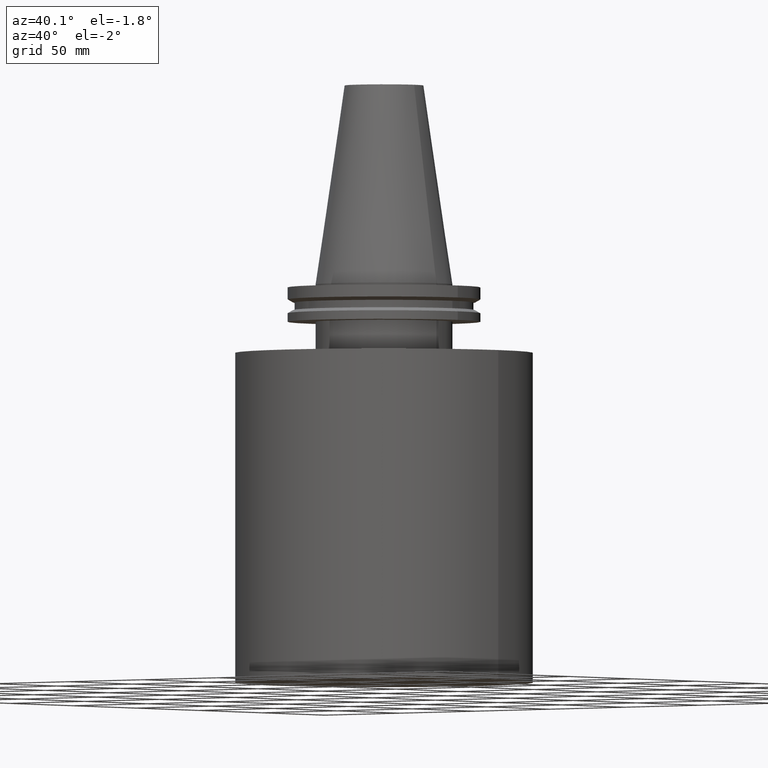
[diagram: clean part render]
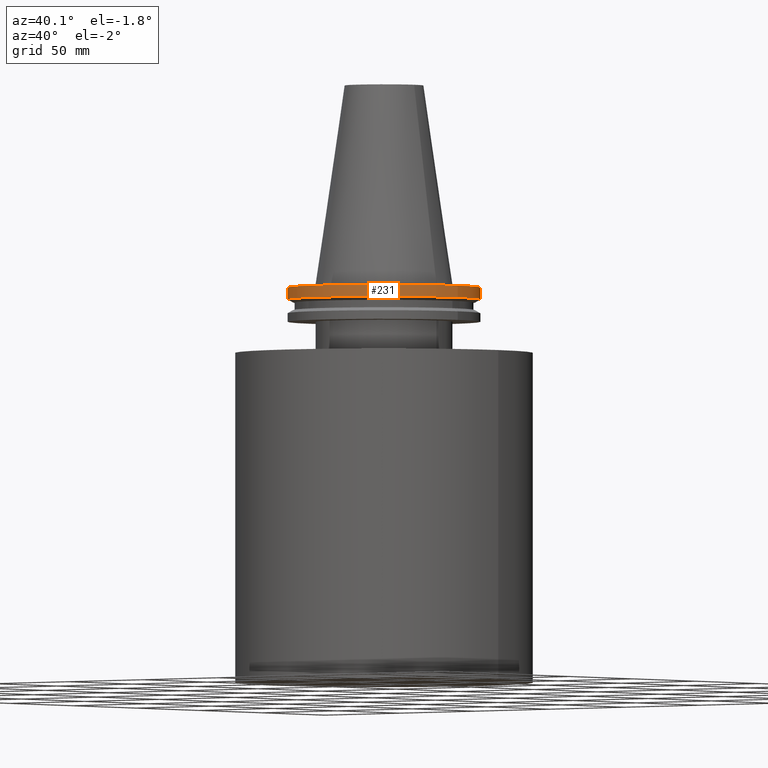
[diagram: same view with one face highlighted and labeled with its STEP entity id]
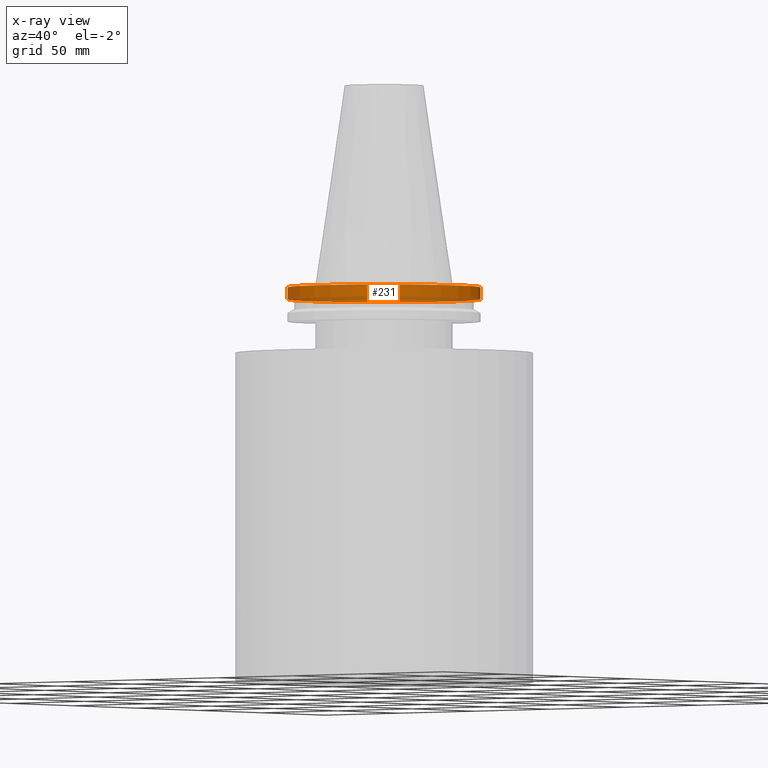
[diagram: x-ray of the same camera — body ghosted, the highlighted face saturated]
A machine part, auxiliary view. The second image highlights one B-rep face of the part: STEP entity #231.
The next image is the same camera in x-ray: the body ghosted, the highlighted face saturated — about 27% of this face is hidden behind the body in this view.
In plain terms, the highlighted cylindrical surface (bore or boss wall) has radius 49.215 mm, axis along (-0, -0, 1).
Its self-contained STEP definition (entity closure, byte-faithful):
#1 = VERTEX_POINT ( 'NONE', #205 ) ;
#21 = CYLINDRICAL_SURFACE ( 'NONE', #266, 49.21499999999999631 ) ;
#27 = DIRECTION ( 'NONE',  ( -0.000000000000000000, -0.000000000000000000, 1.000000000000000000 ) ) ;
#33 = EDGE_CURVE ( 'NONE', #232, #232, #382, .T. ) ;
#44 = ORIENTED_EDGE ( 'NONE', *, *, #33, .F. ) ;
#59 = DIRECTION ( 'NONE',  ( 1.000000000000000000, 0.000000000000000000, 0.000000000000000000 ) ) ;
#67 = EDGE_LOOP ( 'NONE', ( #76 ) ) ;
#76 = ORIENTED_EDGE ( 'NONE', *, *, #342, .T. ) ;
#81 = CARTESIAN_POINT ( 'NONE',  ( 0.000000000000000000, 0.000000000000000000, 101.5999999999999943 ) ) ;
#149 = CARTESIAN_POINT ( 'NONE',  ( 0.000000000000000000, 0.000000000000000000, -7.602389855251287187 ) ) ;
#163 = DIRECTION ( 'NONE',  ( 1.000000000000000000, 0.000000000000000000, 0.000000000000000000 ) ) ;
#204 = CARTESIAN_POINT ( 'NONE',  ( 49.21499999999999631, 0.000000000000000000, -1.499999999999987566 ) ) ;
#205 = CARTESIAN_POINT ( 'NONE',  ( 49.21500000000000341, 0.000000000000000000, -7.602389855251287187 ) ) ;
#209 = AXIS2_PLACEMENT_3D ( 'NONE', #215, #218, #163 ) ;
#215 = CARTESIAN_POINT ( 'NONE',  ( 0.000000000000000000, 0.000000000000000000, -1.499999999999987566 ) ) ;
#218 = DIRECTION ( 'NONE',  ( -0.000000000000000000, -0.000000000000000000, 1.000000000000000000 ) ) ;
#231 = ADVANCED_FACE ( 'NONE', ( #291, #378 ), #21, .T. ) ;
#232 = VERTEX_POINT ( 'NONE', #204 ) ;
#241 = DIRECTION ( 'NONE',  ( -0.000000000000000000, -0.000000000000000000, 1.000000000000000000 ) ) ;
#266 = AXIS2_PLACEMENT_3D ( 'NONE', #81, #27, #59 ) ;
#291 = FACE_OUTER_BOUND ( 'NONE', #362, .T. ) ;
#304 = DIRECTION ( 'NONE',  ( 1.000000000000000000, 0.000000000000000000, 0.000000000000000000 ) ) ;
#322 = CIRCLE ( 'NONE', #334, 49.21500000000000341 ) ;
#334 = AXIS2_PLACEMENT_3D ( 'NONE', #149, #241, #304 ) ;
#342 = EDGE_CURVE ( 'NONE', #1, #1, #322, .T. ) ;
#362 = EDGE_LOOP ( 'NONE', ( #44 ) ) ;
#378 = FACE_OUTER_BOUND ( 'NONE', #67, .T. ) ;
#382 = CIRCLE ( 'NONE', #209, 49.21499999999999631 ) ;